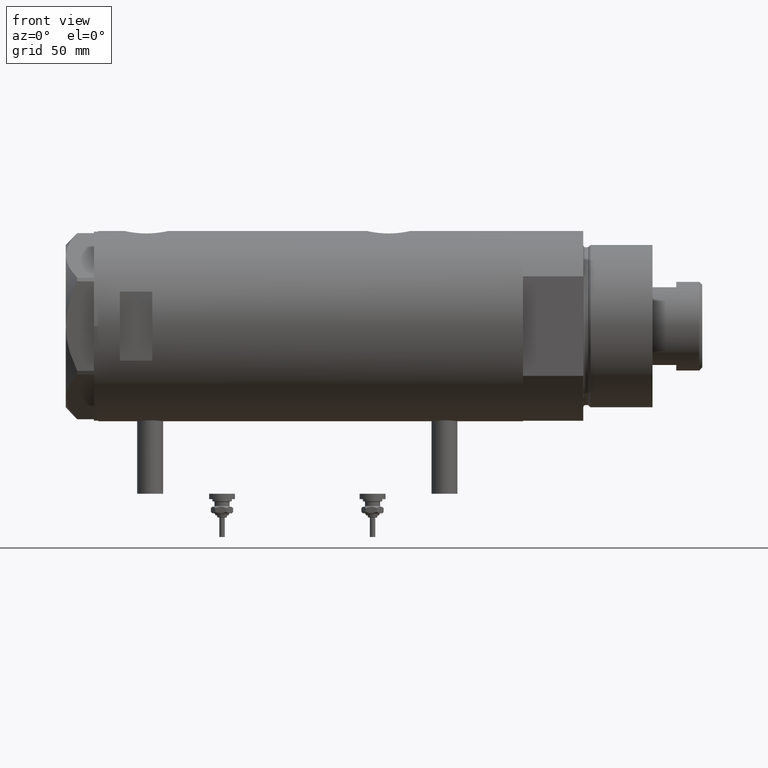
[diagram: clean part render]
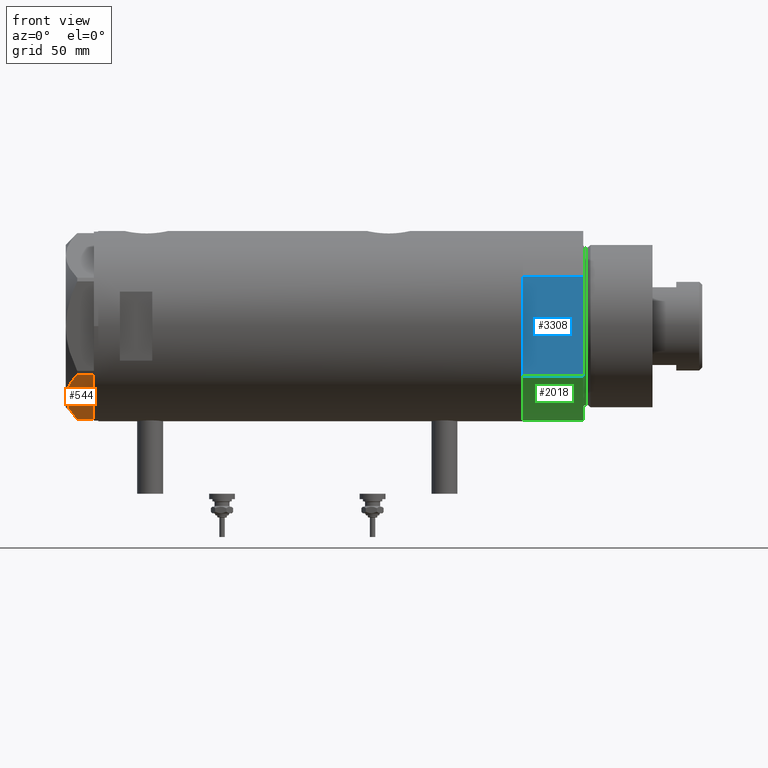
[diagram: same view with three faces highlighted in distinct colors, each labeled with its STEP entity id]
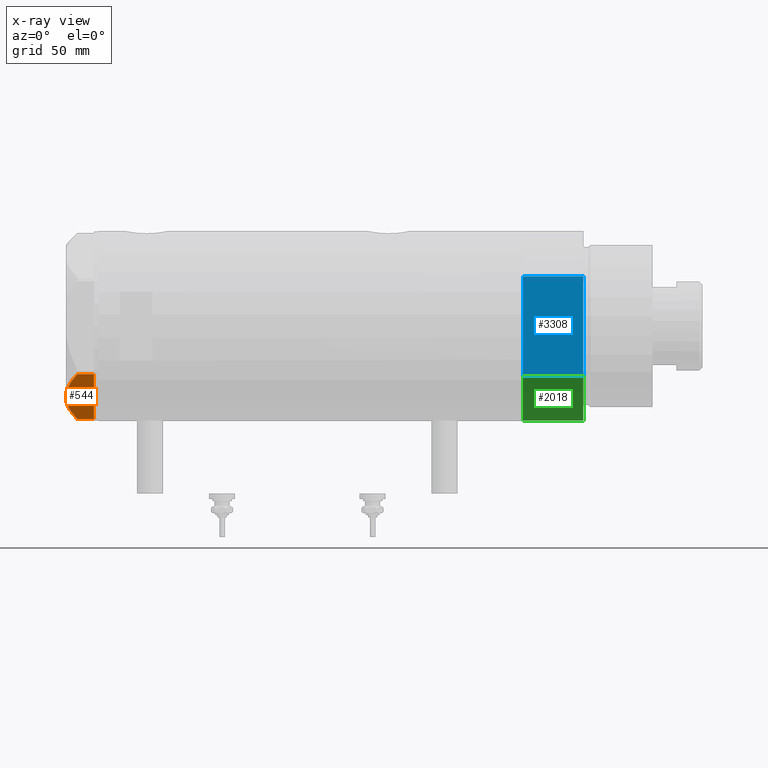
[diagram: x-ray of the same camera — body ghosted, the three highlighted faces saturated]
A machine part, front view with three faces highlighted in distinct colors.
The next image is the same camera in x-ray (body ghosted, the three faces saturated) — at least one of them is partly hidden behind the body in this view.
Their STEP definitions:

[orange] entity #544 — the highlighted planar face has unit normal (0, 0.5, 0.866).
#43 = B_SPLINE_CURVE_WITH_KNOTS ( 'NONE', 3,
 ( #4032, #3580, #1189, #3005, #5864, #1710, #5430, #3450, #637, #2971 ),
 .UNSPECIFIED., .F., .F.,
 ( 4, 2, 2, 2, 4 ),
 ( 0.001231023567492486089, 0.01191187151549577723, 0.01725229548949741218, 0.01992250747649823572, 0.02259271946349905580 ),
 .UNSPECIFIED. ) ;
#258 = CARTESIAN_POINT ( 'NONE',  ( 0.000000000000000000, 43.58994532381674247, 13.00000000000000000 ) ) ;
#308 = DIRECTION ( 'NONE',  ( 0.000000000000000000, 0.000000000000000000, -1.000000000000000000 ) ) ;
#317 = CARTESIAN_POINT ( 'NONE',  ( -36.78005154776143826, 22.35497266190836640, 7.709124142616966324 ) ) ;
#348 = CARTESIAN_POINT ( 'NONE',  ( -20.42709085942861336, 31.79635891736469588, 12.99999999999999822 ) ) ;
#544 = ADVANCED_FACE ( 'NONE', ( #5443 ), #5407, .F. ) ;
#637 = CARTESIAN_POINT ( 'NONE',  ( -18.09346002773000706, 33.14368130623509501, 13.00000000000000178 ) ) ;
#711 = CARTESIAN_POINT ( 'NONE',  ( -26.54034249379619226, 28.26687144063865276, 12.01242981158359413 ) ) ;
#724 = AXIS2_PLACEMENT_3D ( 'NONE', #258, #4498, #1149 ) ;
#745 = CARTESIAN_POINT ( 'NONE',  ( -33.94595399727582929, 23.99123964559089828, 9.210778219600410210 ) ) ;
#963 = VERTEX_POINT ( 'NONE', #5873 ) ;
#1115 = EDGE_CURVE ( 'NONE', #3887, #963, #2667, .T. ) ;
#1149 = DIRECTION ( 'NONE',  ( 0.8660254037844387076, 0.4999999999999998890, 0.000000000000000000 ) ) ;
#1160 = ORIENTED_EDGE ( 'NONE', *, *, #4114, .F. ) ;
#1162 = VERTEX_POINT ( 'NONE', #2700 ) ;
#1189 = CARTESIAN_POINT ( 'NONE',  ( -6.659529780759594786, 39.74506401221885454, 10.58681170757598800 ) ) ;
#1346 = CARTESIAN_POINT ( 'NONE',  ( -18.87499999999999645, 32.69245899286256218, 13.00000000000000000 ) ) ;
#1614 = EDGE_CURVE ( 'NONE', #3068, #963, #1635, .T. ) ;
#1635 = B_SPLINE_CURVE_WITH_KNOTS ( 'NONE', 3,
 ( #4566, #348, #3655, #5379, #711, #2216, #4920, #5921, #3623, #745, #2672, #317 ),
 .UNSPECIFIED., .F., .F.,
 ( 4, 2, 2, 2, 2, 4 ),
 ( 0.02259271946349905580, 0.02789559809390772943, 0.03319847672431640306, 0.03584991603952074335, 0.03850135535472508364, 0.04380423398513375727 ),
 .UNSPECIFIED. ) ;
#1710 = CARTESIAN_POINT ( 'NONE',  ( -14.95332775978647710, 34.95663751642333494, 12.73960743196719925 ) ) ;
#1883 = CARTESIAN_POINT ( 'NONE',  ( -36.78005154776143826, 22.35497266190836996, 13.00000000000000000 ) ) ;
#2099 = VECTOR ( 'NONE', #3746, 1000.000000000000000 ) ;
#2216 = CARTESIAN_POINT ( 'NONE',  ( -28.80058011347671965, 26.96192264248358228, 11.30742055474462049 ) ) ;
#2362 = EDGE_CURVE ( 'NONE', #1162, #3887, #5305, .T. ) ;
#2406 = EDGE_LOOP ( 'NONE', ( #5567, #5488, #4554, #1160, #5843 ) ) ;
#2511 = VECTOR ( 'NONE', #308, 1000.000000000000000 ) ;
#2667 = LINE ( 'NONE', #1883, #2099 ) ;
#2672 = CARTESIAN_POINT ( 'NONE',  ( -35.37320095427632793, 23.16721823076656506, 8.489459328478153211 ) ) ;
#2700 = CARTESIAN_POINT ( 'NONE',  ( -0.9699484522385801721, 43.02994532381674020, 0.000000000000000000 ) ) ;
#2889 = EDGE_CURVE ( 'NONE', #4029, #1162, #4135, .T. ) ;
#2971 = CARTESIAN_POINT ( 'NONE',  ( -18.87499999999999645, 32.69245899286256218, 13.00000000000000000 ) ) ;
#3005 = CARTESIAN_POINT ( 'NONE',  ( -11.12401302890051547, 37.16749340711212568, 11.98878493998159023 ) ) ;
#3061 = CARTESIAN_POINT ( 'NONE',  ( -0.9699484522384331786, 43.02994532381681836, 7.709124142616899711 ) ) ;
#3068 = VERTEX_POINT ( 'NONE', #1346 ) ;
#3401 = CARTESIAN_POINT ( 'NONE',  ( 0.000000000000000000, 43.58994532381674247, 0.000000000000000000 ) ) ;
#3450 = CARTESIAN_POINT ( 'NONE',  ( -17.30879953081282707, 33.59670525535268837, 12.96759879420491579 ) ) ;
#3580 = CARTESIAN_POINT ( 'NONE',  ( -3.783045159267922841, 41.40580318275689820, 9.269459228581807153 ) ) ;
#3623 = CARTESIAN_POINT ( 'NONE',  ( -31.76569840794909183, 25.25001079699087114, 10.17879673963432552 ) ) ;
#3655 = CARTESIAN_POINT ( 'NONE',  ( -21.96683860604064620, 30.90738514137411741, 12.87183830165160003 ) ) ;
#3681 = VECTOR ( 'NONE', #5257, 1000.000000000000000 ) ;
#3746 = DIRECTION ( 'NONE',  ( 0.000000000000000000, 0.000000000000000000, 1.000000000000000000 ) ) ;
#3887 = VERTEX_POINT ( 'NONE', #4333 ) ;
#4029 = VERTEX_POINT ( 'NONE', #3061 ) ;
#4032 = CARTESIAN_POINT ( 'NONE',  ( -0.9699484522384331786, 43.02994532381681836, 7.709124142616899711 ) ) ;
#4114 = EDGE_CURVE ( 'NONE', #4029, #3068, #43, .T. ) ;
#4135 = LINE ( 'NONE', #5966, #2511 ) ;
#4333 = CARTESIAN_POINT ( 'NONE',  ( -36.78005154776143826, 22.35497266190836996, 0.000000000000000000 ) ) ;
#4498 = DIRECTION ( 'NONE',  ( 0.4999999999999998890, -0.8660254037844387076, 0.000000000000000000 ) ) ;
#4554 = ORIENTED_EDGE ( 'NONE', *, *, #1614, .F. ) ;
#4566 = CARTESIAN_POINT ( 'NONE',  ( -18.87499999999999645, 32.69245899286256218, 13.00000000000000000 ) ) ;
#4920 = CARTESIAN_POINT ( 'NONE',  ( -29.55075297405562651, 26.52881013948959321, 11.04644118613042991 ) ) ;
#5257 = DIRECTION ( 'NONE',  ( -0.8660254037844387076, -0.4999999999999998890, 0.000000000000000000 ) ) ;
#5305 = LINE ( 'NONE', #3401, #3681 ) ;
#5379 = CARTESIAN_POINT ( 'NONE',  ( -25.02345495740896197, 29.14264686810219374, 12.37795492145956366 ) ) ;
#5407 = PLANE ( 'NONE',  #724 ) ;
#5430 = CARTESIAN_POINT ( 'NONE',  ( -15.73313492417779180, 34.50641564014599538, 12.83692902789789514 ) ) ;
#5443 = FACE_OUTER_BOUND ( 'NONE', #2406, .T. ) ;
#5488 = ORIENTED_EDGE ( 'NONE', *, *, #1115, .T. ) ;
#5567 = ORIENTED_EDGE ( 'NONE', *, *, #2362, .T. ) ;
#5843 = ORIENTED_EDGE ( 'NONE', *, *, #2889, .T. ) ;
#5864 = CARTESIAN_POINT ( 'NONE',  ( -12.63736081963745050, 36.29376165275263588, 12.35956205105863148 ) ) ;
#5873 = CARTESIAN_POINT ( 'NONE',  ( -36.78005154776143826, 22.35497266190836640, 7.709124142616966324 ) ) ;
#5921 = CARTESIAN_POINT ( 'NONE',  ( -31.03235934281896391, 25.67340430365103998, 10.48240969891262608 ) ) ;
#5966 = CARTESIAN_POINT ( 'NONE',  ( -0.9699484522385801721, 43.02994532381674020, 13.00000000000000000 ) ) ;

[blue] entity #3308 — the highlighted planar face has unit normal (-0, 1, 0).
#67 = LINE ( 'NONE', #2904, #262 ) ;
#86 = EDGE_CURVE ( 'NONE', #2769, #4132, #4507, .T. ) ;
#262 = VECTOR ( 'NONE', #3275, 1000.000000000000000 ) ;
#387 = CARTESIAN_POINT ( 'NONE',  ( 0.000000000000000000, -37.50000000000000000, 27.89999999999999858 ) ) ;
#453 = VECTOR ( 'NONE', #3152, 1000.000000000000000 ) ;
#757 = FACE_OUTER_BOUND ( 'NONE', #1790, .T. ) ;
#817 = DIRECTION ( 'NONE',  ( -1.000000000000000000, -0.000000000000000000, -0.000000000000000000 ) ) ;
#848 = VECTOR ( 'NONE', #3437, 1000.000000000000000 ) ;
#856 = DIRECTION ( 'NONE',  ( -0.000000000000000000, 1.000000000000000000, 0.000000000000000000 ) ) ;
#991 = ORIENTED_EDGE ( 'NONE', *, *, #3315, .F. ) ;
#1087 = LINE ( 'NONE', #5733, #848 ) ;
#1123 = EDGE_CURVE ( 'NONE', #5541, #5110, #1333, .T. ) ;
#1127 = CARTESIAN_POINT ( 'NONE',  ( -23.01629857296780557, -37.50000000000000000, 27.89999999999999858 ) ) ;
#1210 = CARTESIAN_POINT ( 'NONE',  ( -23.01629857296780557, -37.50000000000000000, 0.000000000000000000 ) ) ;
#1284 = CARTESIAN_POINT ( 'NONE',  ( 23.01629857296780557, -37.50000000000000000, 0.000000000000000000 ) ) ;
#1332 = VECTOR ( 'NONE', #3617, 1000.000000000000000 ) ;
#1333 = LINE ( 'NONE', #5116, #1332 ) ;
#1398 = CARTESIAN_POINT ( 'NONE',  ( 23.01629857296780557, -37.50000000000000000, 27.89999999999999858 ) ) ;
#1602 = EDGE_CURVE ( 'NONE', #5110, #3866, #1087, .T. ) ;
#1627 = ORIENTED_EDGE ( 'NONE', *, *, #3393, .T. ) ;
#1641 = LINE ( 'NONE', #1210, #3969 ) ;
#1697 = LINE ( 'NONE', #4997, #453 ) ;
#1790 = EDGE_LOOP ( 'NONE', ( #3052, #4633, #991, #5984, #5238, #2926, #1627 ) ) ;
#2086 = LINE ( 'NONE', #3014, #4083 ) ;
#2446 = CARTESIAN_POINT ( 'NONE',  ( -13.91941090707505957, -37.50000000000000000, 0.000000000000000000 ) ) ;
#2501 = AXIS2_PLACEMENT_3D ( 'NONE', #3633, #856, #3181 ) ;
#2589 = DIRECTION ( 'NONE',  ( -1.000000000000000000, -0.000000000000000000, -0.000000000000000000 ) ) ;
#2769 = VERTEX_POINT ( 'NONE', #387 ) ;
#2904 = CARTESIAN_POINT ( 'NONE',  ( 23.01629857296780557, -37.50000000000000000, 0.000000000000000000 ) ) ;
#2926 = ORIENTED_EDGE ( 'NONE', *, *, #4480, .F. ) ;
#3014 = CARTESIAN_POINT ( 'NONE',  ( -23.01629857296780557, -37.50000000000000000, 27.89999999999999858 ) ) ;
#3052 = ORIENTED_EDGE ( 'NONE', *, *, #5207, .T. ) ;
#3152 = DIRECTION ( 'NONE',  ( -0.000000000000000000, -0.000000000000000000, 1.000000000000000000 ) ) ;
#3181 = DIRECTION ( 'NONE',  ( 0.000000000000000000, -0.000000000000000000, 1.000000000000000000 ) ) ;
#3275 = DIRECTION ( 'NONE',  ( -0.000000000000000000, -0.000000000000000000, 1.000000000000000000 ) ) ;
#3302 = VERTEX_POINT ( 'NONE', #1284 ) ;
#3308 = ADVANCED_FACE ( 'NONE', ( #757 ), #5988, .F. ) ;
#3315 = EDGE_CURVE ( 'NONE', #3866, #4132, #1697, .T. ) ;
#3393 = EDGE_CURVE ( 'NONE', #3302, #3831, #67, .T. ) ;
#3403 = CARTESIAN_POINT ( 'NONE',  ( -23.01629857296780557, -37.50000000000000000, 0.000000000000000000 ) ) ;
#3437 = DIRECTION ( 'NONE',  ( -1.000000000000000000, -0.000000000000000000, -0.000000000000000000 ) ) ;
#3617 = DIRECTION ( 'NONE',  ( -1.000000000000000000, -0.000000000000000000, -0.000000000000000000 ) ) ;
#3633 = CARTESIAN_POINT ( 'NONE',  ( -23.01629857296780557, -37.50000000000000000, 0.000000000000000000 ) ) ;
#3831 = VERTEX_POINT ( 'NONE', #1398 ) ;
#3866 = VERTEX_POINT ( 'NONE', #3403 ) ;
#3969 = VECTOR ( 'NONE', #2589, 1000.000000000000000 ) ;
#4083 = VECTOR ( 'NONE', #5237, 1000.000000000000000 ) ;
#4132 = VERTEX_POINT ( 'NONE', #1127 ) ;
#4480 = EDGE_CURVE ( 'NONE', #3302, #5541, #1641, .T. ) ;
#4507 = LINE ( 'NONE', #5479, #5495 ) ;
#4633 = ORIENTED_EDGE ( 'NONE', *, *, #86, .T. ) ;
#4792 = CARTESIAN_POINT ( 'NONE',  ( 13.91941090707505957, -37.50000000000000000, 0.000000000000000000 ) ) ;
#4997 = CARTESIAN_POINT ( 'NONE',  ( -23.01629857296780557, -37.50000000000000000, 0.000000000000000000 ) ) ;
#5110 = VERTEX_POINT ( 'NONE', #2446 ) ;
#5116 = CARTESIAN_POINT ( 'NONE',  ( -23.01629857296780557, -37.50000000000000000, 0.000000000000000000 ) ) ;
#5207 = EDGE_CURVE ( 'NONE', #3831, #2769, #2086, .T. ) ;
#5237 = DIRECTION ( 'NONE',  ( -1.000000000000000000, -0.000000000000000000, -0.000000000000000000 ) ) ;
#5238 = ORIENTED_EDGE ( 'NONE', *, *, #1123, .F. ) ;
#5479 = CARTESIAN_POINT ( 'NONE',  ( -23.01629857296780557, -37.50000000000000000, 27.89999999999999858 ) ) ;
#5495 = VECTOR ( 'NONE', #817, 1000.000000000000000 ) ;
#5541 = VERTEX_POINT ( 'NONE', #4792 ) ;
#5733 = CARTESIAN_POINT ( 'NONE',  ( -23.01629857296780557, -37.50000000000000000, 0.000000000000000000 ) ) ;
#5984 = ORIENTED_EDGE ( 'NONE', *, *, #1602, .F. ) ;
#5988 = PLANE ( 'NONE',  #2501 ) ;

[green] entity #2018 — the highlighted cylindrical surface (partial cylindrical patch) has radius 44 mm, axis along (-1, -0, 0).
#67 = LINE ( 'NONE', #2904, #262 ) ;
#93 = LINE ( 'NONE', #4266, #2595 ) ;
#262 = VECTOR ( 'NONE', #3275, 1000.000000000000000 ) ;
#728 = DIRECTION ( 'NONE',  ( 1.000000000000000000, 0.000000000000000000, 0.000000000000000000 ) ) ;
#1007 = ORIENTED_EDGE ( 'NONE', *, *, #1666, .T. ) ;
#1284 = CARTESIAN_POINT ( 'NONE',  ( 23.01629857296780557, -37.50000000000000000, 0.000000000000000000 ) ) ;
#1398 = CARTESIAN_POINT ( 'NONE',  ( 23.01629857296780557, -37.50000000000000000, 27.89999999999999858 ) ) ;
#1471 = EDGE_LOOP ( 'NONE', ( #4100, #3765, #3293, #1007 ) ) ;
#1542 = VERTEX_POINT ( 'NONE', #2983 ) ;
#1666 = EDGE_CURVE ( 'NONE', #1542, #2884, #93, .T. ) ;
#1754 = CARTESIAN_POINT ( 'NONE',  ( 23.01629857296780557, 37.50000000000000000, 27.89999999999999858 ) ) ;
#1828 = CARTESIAN_POINT ( 'NONE',  ( 0.000000000000000000, 0.000000000000000000, 0.000000000000000000 ) ) ;
#1952 = DIRECTION ( 'NONE',  ( -0.000000000000000000, -0.000000000000000000, 1.000000000000000000 ) ) ;
#2018 = ADVANCED_FACE ( 'NONE', ( #4665 ), #3208, .T. ) ;
#2283 = DIRECTION ( 'NONE',  ( -0.000000000000000000, -0.000000000000000000, -1.000000000000000000 ) ) ;
#2317 = CARTESIAN_POINT ( 'NONE',  ( 0.000000000000000000, 0.000000000000000000, 27.89999999999999858 ) ) ;
#2595 = VECTOR ( 'NONE', #1952, 1000.000000000000000 ) ;
#2675 = DIRECTION ( 'NONE',  ( 1.000000000000000000, 0.000000000000000000, 0.000000000000000000 ) ) ;
#2740 = DIRECTION ( 'NONE',  ( -1.000000000000000000, 0.000000000000000000, 0.000000000000000000 ) ) ;
#2884 = VERTEX_POINT ( 'NONE', #1754 ) ;
#2904 = CARTESIAN_POINT ( 'NONE',  ( 23.01629857296780557, -37.50000000000000000, 0.000000000000000000 ) ) ;
#2983 = CARTESIAN_POINT ( 'NONE',  ( 23.01629857296780557, 37.50000000000000000, 0.000000000000000000 ) ) ;
#3001 = CIRCLE ( 'NONE', #4072, 44.00000000000000000 ) ;
#3208 = CYLINDRICAL_SURFACE ( 'NONE', #3479, 44.00000000000000000 ) ;
#3251 = CIRCLE ( 'NONE', #3594, 44.00000000000000000 ) ;
#3275 = DIRECTION ( 'NONE',  ( -0.000000000000000000, -0.000000000000000000, 1.000000000000000000 ) ) ;
#3293 = ORIENTED_EDGE ( 'NONE', *, *, #5032, .T. ) ;
#3302 = VERTEX_POINT ( 'NONE', #1284 ) ;
#3393 = EDGE_CURVE ( 'NONE', #3302, #3831, #67, .T. ) ;
#3479 = AXIS2_PLACEMENT_3D ( 'NONE', #2317, #2283, #2740 ) ;
#3594 = AXIS2_PLACEMENT_3D ( 'NONE', #1828, #5473, #2675 ) ;
#3765 = ORIENTED_EDGE ( 'NONE', *, *, #3393, .F. ) ;
#3831 = VERTEX_POINT ( 'NONE', #1398 ) ;
#4072 = AXIS2_PLACEMENT_3D ( 'NONE', #5365, #5393, #728 ) ;
#4087 = EDGE_CURVE ( 'NONE', #3831, #2884, #3001, .T. ) ;
#4100 = ORIENTED_EDGE ( 'NONE', *, *, #4087, .F. ) ;
#4266 = CARTESIAN_POINT ( 'NONE',  ( 23.01629857296780557, 37.50000000000000000, 0.000000000000000000 ) ) ;
#4665 = FACE_OUTER_BOUND ( 'NONE', #1471, .T. ) ;
#5032 = EDGE_CURVE ( 'NONE', #3302, #1542, #3251, .T. ) ;
#5365 = CARTESIAN_POINT ( 'NONE',  ( 0.000000000000000000, 0.000000000000000000, 27.89999999999999858 ) ) ;
#5393 = DIRECTION ( 'NONE',  ( 0.000000000000000000, 0.000000000000000000, 1.000000000000000000 ) ) ;
#5473 = DIRECTION ( 'NONE',  ( 0.000000000000000000, 0.000000000000000000, 1.000000000000000000 ) ) ;